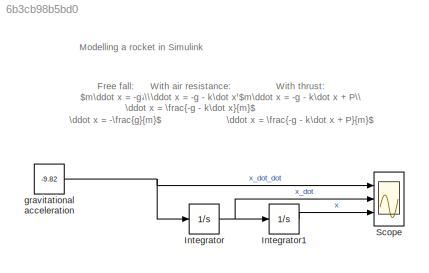
MODEL slx_6b3cb98b5bd0
KIND model
CONFIG AbsTol = auto
CONFIG EnableMultiTasking = off
CONFIG FixedStep = auto
CONFIG MaxStep = auto
CONFIG MinStep = auto
CONFIG RelTol = 1e-3
CONFIG SampleTimeConstraint = Unconstrained
CONFIG Solver = VariableStepAuto
CONFIG SolverName = VariableStepAuto
CONFIG StartTime = 0.0
CONFIG StopTime = 10.0
BLOCK [Integrator] Integrator
  Ports = [1, 1]
BLOCK [Integrator] Integrator1
  Ports = [1, 1]
BLOCK [Scope] Scope
  Floating = off
  NumInputPorts = 3
  Ports = [3]
  ScopeSpecificationString = Simulink.scopes.TimeScopeBlockCfg('CurrentConfiguration', extmgr.ConfigurationSet(extmgr.Configuration('Core','General UI',true),extmgr.Configuration('Core','Source UI',true),extmgr.Configuration('Sources','WiredSimulink',true),extmgr.Configuration('Visuals','Time Domain',true,'SerializedDisplays',{struct('MinYLimReal','-552.375','MaxYLimReal','61.375','YLabelReal','','MinYLimMag',' 0.00000','MaxY...<+1372ch>
BLOCK [Constant] gravitational acceleration
  Value = -9.82
ANNOTATION (root): Modelling a rocket in Simulink
ANNOTATION (root): Free fall: $m\ddot x = -g \\ \ddot x = -\frac{g}{m}$
ANNOTATION (root): With air resistance: $m\ddot x = -g - k\dot x\\ \ddot x = \frac{-g - k\dot x}{m}$
ANNOTATION (root): With thrust: $m\ddot x = -g - k\dot x + P\\ \ddot x = \frac{-g - k\dot x + P}{m}$
LINE Integrator1:1 -> Scope:3
NET Integrator:1 -> Integrator1:1, Scope:2
NET gravitational acceleration:1 -> Integrator:1, Scope:1
note: NET lines group one-source signal fan-out (src -> all destinations, sorted); 1:1 wires keep LINE
